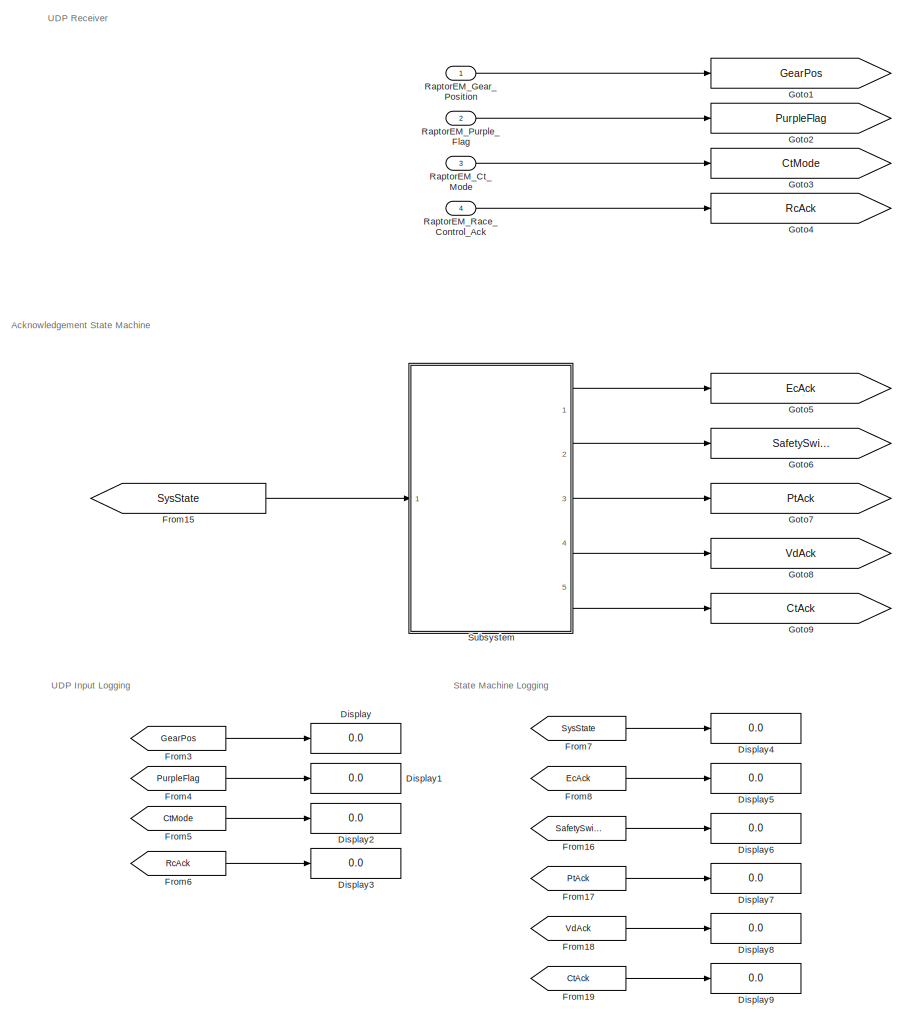
[diagram: root canvas - part 1/2, left side, full height]
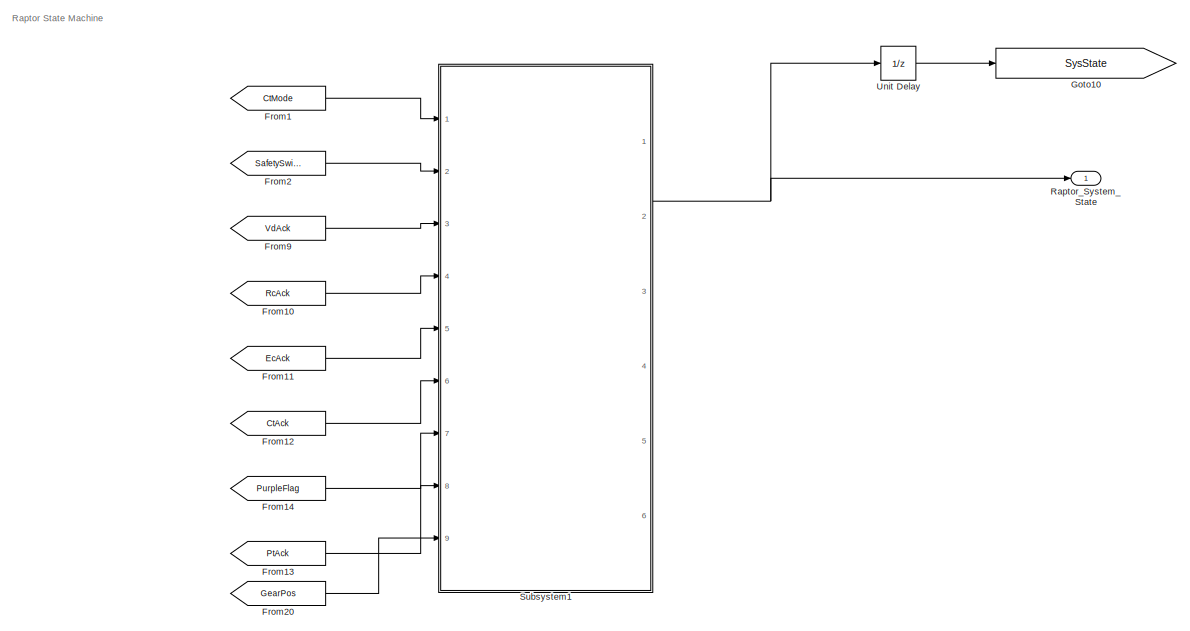
[diagram: root canvas - part 2/2, top right region]
MODEL slx_5da4cb663a10
KIND model
CONFIG AbsTol = auto
CONFIG EnableMultiTasking = on
CONFIG FixedStep = auto
CONFIG MaxStep = auto
CONFIG MinStep = auto
CONFIG RelTol = 1e-3
CONFIG SampleTimeConstraint = Unconstrained
CONFIG Solver = FixedStepAuto
CONFIG SolverName = FixedStepAuto
CONFIG StartTime = 0.0
CONFIG StopTime = Inf
BLOCK [Display] Display
  Decimation = 1
  Ports = [1]
BLOCK [Display] Display1
  Decimation = 1
  Ports = [1]
BLOCK [Display] Display2
  Decimation = 1
  Ports = [1]
BLOCK [Display] Display3
  Decimation = 1
  Ports = [1]
BLOCK [Display] Display4
  Decimation = 1
  Ports = [1]
BLOCK [Display] Display5
  Decimation = 1
  Ports = [1]
BLOCK [Display] Display6
  Decimation = 1
  Ports = [1]
BLOCK [Display] Display7
  Decimation = 1
  Ports = [1]
BLOCK [Display] Display8
  Decimation = 1
  Ports = [1]
BLOCK [Display] Display9
  Decimation = 1
  Ports = [1]
BLOCK [From] From1
  GotoTag = CtMode
BLOCK [From] From10
  GotoTag = RcAck
BLOCK [From] From11
  GotoTag = EcAck
BLOCK [From] From12
  GotoTag = CtAck
BLOCK [From] From13
  GotoTag = PtAck
BLOCK [From] From14
  GotoTag = PurpleFlag
BLOCK [From] From15
  GotoTag = SysState
BLOCK [From] From16
  GotoTag = SafetySwitch
BLOCK [From] From17
  GotoTag = PtAck
BLOCK [From] From18
  GotoTag = VdAck
BLOCK [From] From19
  GotoTag = CtAck
BLOCK [From] From2
  GotoTag = SafetySwitch
BLOCK [From] From20
  GotoTag = GearPos
BLOCK [From] From3
  GotoTag = GearPos
BLOCK [From] From4
  GotoTag = PurpleFlag
BLOCK [From] From5
  GotoTag = CtMode
BLOCK [From] From6
  GotoTag = RcAck
BLOCK [From] From7
  GotoTag = SysState
BLOCK [From] From8
  GotoTag = EcAck
BLOCK [From] From9
  GotoTag = VdAck
BLOCK [Goto] Goto1
  GotoTag = GearPos
BLOCK [Goto] Goto10
  GotoTag = SysState
BLOCK [Goto] Goto2
  GotoTag = PurpleFlag
BLOCK [Goto] Goto3
  GotoTag = CtMode
BLOCK [Goto] Goto4
  GotoTag = RcAck
BLOCK [Goto] Goto5
  GotoTag = EcAck
BLOCK [Goto] Goto6
  GotoTag = SafetySwitch
BLOCK [Goto] Goto7
  GotoTag = PtAck
BLOCK [Goto] Goto8
  GotoTag = VdAck
BLOCK [Goto] Goto9
  GotoTag = CtAck
BLOCK [Inport] RaptorEM_Ct_Mode
  IconDisplay = Port number
  OutDataTypeStr = uint8
  Port = 3
BLOCK [Inport] RaptorEM_Gear_Position
  IconDisplay = Port number
  OutDataTypeStr = uint8
BLOCK [Inport] RaptorEM_Purple_Flag
  IconDisplay = Port number
  OutDataTypeStr = uint8
  Port = 2
BLOCK [Inport] RaptorEM_Race_Control_Ack
  IconDisplay = Port number
  OutDataTypeStr = uint8
  Port = 4
BLOCK [Outport] Raptor_System_State
  IconDisplay = Port number
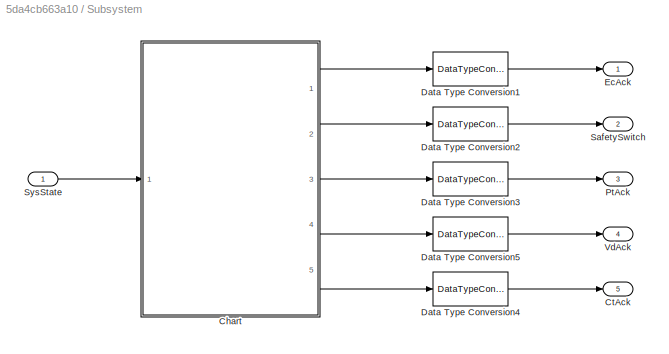
BLOCK [SubSystem] Subsystem
  Ports = [1, 5]
  RequestExecContextInheritance = off
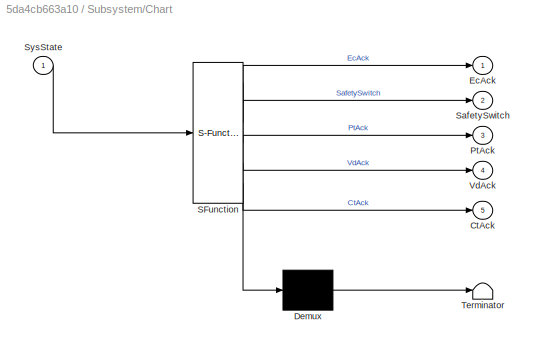
BLOCK [SubSystem] Subsystem/Chart
  ErrorFcn = Stateflow.Translate.translate
  PermitHierarchicalResolution = ExplicitOnly
  Ports = [1, 5]
  RequestExecContextInheritance = off
  SFBlockType = Chart
  TreatAsAtomicUnit = on
BLOCK [Demux] Subsystem/Chart/ Demux 
  Outputs = 1
  Ports = [1, 1]
BLOCK [S-Function] Subsystem/Chart/ SFunction 
  EnableBusSupport = on
  FunctionName = sf_sfun
  PortCounts = [1 6]
  Ports = [1, 6]
  SFcnIsStateOwnerBlock = off
  SFunctionDeploymentMode = off
  Tag = Stateflow S-Function RaptorStateMachine 1
BLOCK [Terminator] Subsystem/Chart/ Terminator 
BLOCK [Outport] Subsystem/Chart/CtAck
  IconDisplay = Port number
  Port = 5
BLOCK [Outport] Subsystem/Chart/EcAck
  IconDisplay = Port number
BLOCK [Outport] Subsystem/Chart/PtAck
  IconDisplay = Port number
  Port = 3
BLOCK [Outport] Subsystem/Chart/SafetySwitch
  IconDisplay = Port number
  Port = 2
BLOCK [Inport] Subsystem/Chart/SysState
  IconDisplay = Port number
BLOCK [Outport] Subsystem/Chart/VdAck
  IconDisplay = Port number
  Port = 4
BLOCK [Outport] Subsystem/CtAck
  IconDisplay = Port number
  Port = 5
BLOCK [DataTypeConversion] Subsystem/Data Type Conversion1
  OutDataTypeStr = uint8
  RndMeth = Floor
  SaturateOnIntegerOverflow = off
BLOCK [DataTypeConversion] Subsystem/Data Type Conversion2
  OutDataTypeStr = uint8
  RndMeth = Floor
  SaturateOnIntegerOverflow = off
BLOCK [DataTypeConversion] Subsystem/Data Type Conversion3
  OutDataTypeStr = uint8
  RndMeth = Floor
  SaturateOnIntegerOverflow = off
BLOCK [DataTypeConversion] Subsystem/Data Type Conversion4
  OutDataTypeStr = uint8
  RndMeth = Floor
  SaturateOnIntegerOverflow = off
BLOCK [DataTypeConversion] Subsystem/Data Type Conversion5
  OutDataTypeStr = uint8
  RndMeth = Floor
  SaturateOnIntegerOverflow = off
BLOCK [Outport] Subsystem/EcAck
  IconDisplay = Port number
BLOCK [Outport] Subsystem/PtAck
  IconDisplay = Port number
  Port = 3
BLOCK [Outport] Subsystem/SafetySwitch
  IconDisplay = Port number
  Port = 2
BLOCK [Inport] Subsystem/SysState
  IconDisplay = Port number
BLOCK [Outport] Subsystem/VdAck
  IconDisplay = Port number
  Port = 4
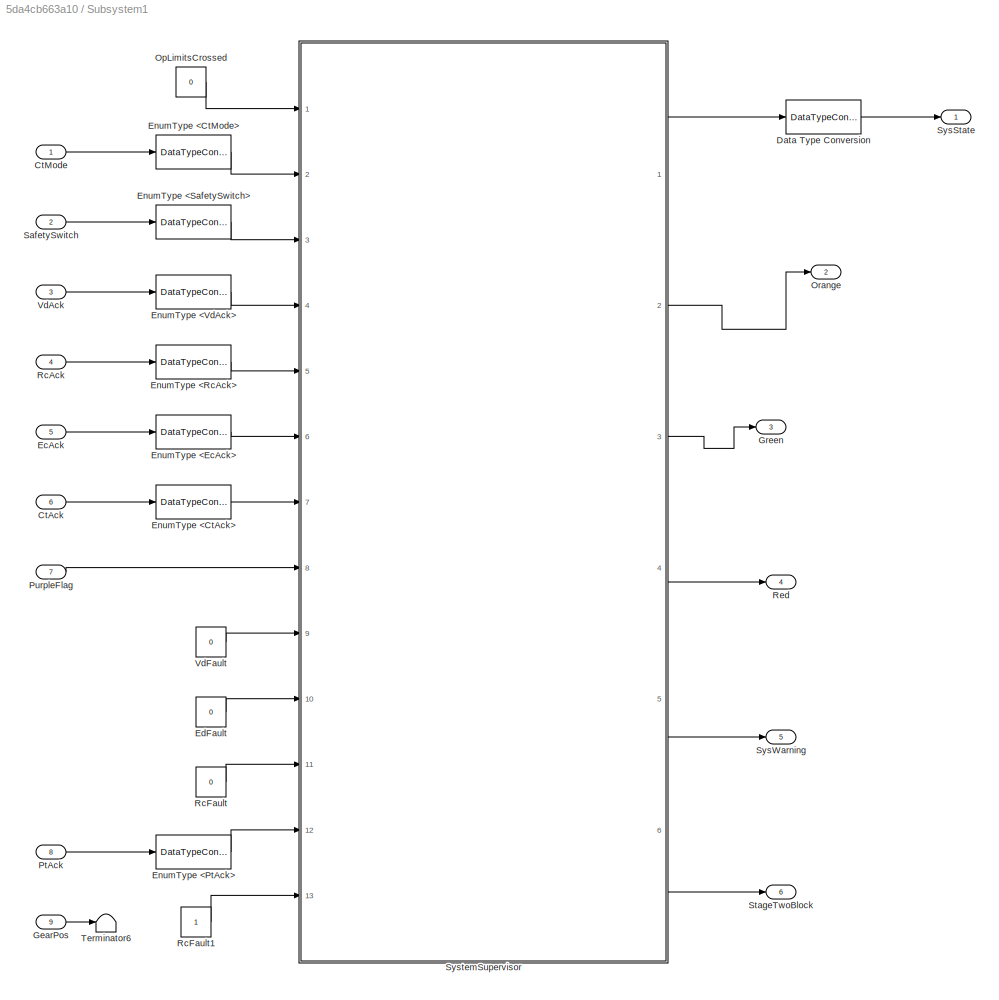
BLOCK [SubSystem] Subsystem1
  Ports = [9, 6]
  RequestExecContextInheritance = off
BLOCK [Inport] Subsystem1/CtAck
  IconDisplay = Port number
  Port = 6
BLOCK [Inport] Subsystem1/CtMode
  IconDisplay = Port number
BLOCK [DataTypeConversion] Subsystem1/Data Type Conversion
  OutDataTypeStr = uint8
  RndMeth = Floor
  SaturateOnIntegerOverflow = off
BLOCK [Inport] Subsystem1/EcAck
  IconDisplay = Port number
  Port = 5
BLOCK [Constant] Subsystem1/EdFault
  Value = 0
BLOCK [DataTypeConversion] Subsystem1/EnumType <CtAck>
  OutDataTypeStr = Enum: CtAck
  RndMeth = Floor
  SaturateOnIntegerOverflow = off
BLOCK [DataTypeConversion] Subsystem1/EnumType <CtMode>
  OutDataTypeStr = Enum: CtMode
  RndMeth = Floor
  SaturateOnIntegerOverflow = off
BLOCK [DataTypeConversion] Subsystem1/EnumType <EcAck>
  OutDataTypeStr = Enum: EcAck
  RndMeth = Floor
  SaturateOnIntegerOverflow = off
BLOCK [DataTypeConversion] Subsystem1/EnumType <PtAck>
  OutDataTypeStr = Enum: PtAck
  RndMeth = Floor
  SaturateOnIntegerOverflow = off
BLOCK [DataTypeConversion] Subsystem1/EnumType <RcAck>
  OutDataTypeStr = Enum: RcAck
  RndMeth = Floor
  SaturateOnIntegerOverflow = off
BLOCK [DataTypeConversion] Subsystem1/EnumType <SafetySwitch>
  OutDataTypeStr = Enum: SafetySwitch
  RndMeth = Floor
  SaturateOnIntegerOverflow = off
BLOCK [DataTypeConversion] Subsystem1/EnumType <VdAck>
  OutDataTypeStr = Enum: VdAck
  RndMeth = Floor
  SaturateOnIntegerOverflow = off
BLOCK [Inport] Subsystem1/GearPos
  IconDisplay = Port number
  Port = 9
BLOCK [Outport] Subsystem1/Green
  IconDisplay = Port number
  Port = 3
BLOCK [Constant] Subsystem1/OpLimitsCrossed
  OutDataTypeStr = boolean
  Value = 0
BLOCK [Outport] Subsystem1/Orange
  IconDisplay = Port number
  Port = 2
BLOCK [Inport] Subsystem1/PtAck
  IconDisplay = Port number
  Port = 8
BLOCK [Inport] Subsystem1/PurpleFlag
  IconDisplay = Port number
  Port = 7
BLOCK [Inport] Subsystem1/RcAck
  IconDisplay = Port number
  Port = 4
BLOCK [Constant] Subsystem1/RcFault
  Value = 0
BLOCK [Constant] Subsystem1/RcFault1
  OutDataTypeStr = uint8
BLOCK [Outport] Subsystem1/Red
  IconDisplay = Port number
  Port = 4
BLOCK [Inport] Subsystem1/SafetySwitch
  IconDisplay = Port number
  Port = 2
BLOCK [Outport] Subsystem1/StageTwoBlock
  IconDisplay = Port number
  Port = 6
BLOCK [Outport] Subsystem1/SysState
  IconDisplay = Port number
BLOCK [Outport] Subsystem1/SysWarning
  IconDisplay = Port number
  Port = 5
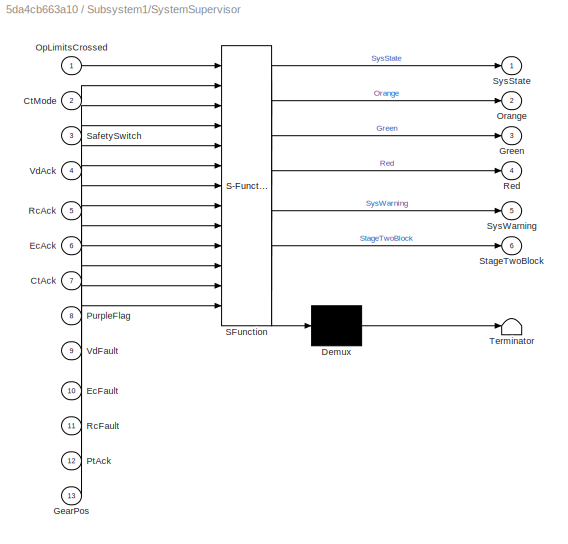
BLOCK [SubSystem] Subsystem1/SystemSupervisor
  ErrorFcn = Stateflow.Translate.translate
  PermitHierarchicalResolution = ExplicitOnly
  Ports = [13, 6]
  RequestExecContextInheritance = off
  SFBlockType = Chart
  TreatAsAtomicUnit = on
BLOCK [Demux] Subsystem1/SystemSupervisor/ Demux 
  DisplayOption = bar
  Outputs = 1
  Ports = [1, 1]
BLOCK [S-Function] Subsystem1/SystemSupervisor/ SFunction 
  EnableBusSupport = on
  FunctionName = sf_sfun
  PortCounts = [13 7]
  Ports = [13, 7]
  SFcnIsStateOwnerBlock = off
  SFunctionDeploymentMode = off
  Tag = Stateflow S-Function RaptorStateMachine 3
BLOCK [Terminator] Subsystem1/SystemSupervisor/ Terminator 
BLOCK [Inport] Subsystem1/SystemSupervisor/CtAck
  IconDisplay = Port number
  Port = 7
BLOCK [Inport] Subsystem1/SystemSupervisor/CtMode
  IconDisplay = Port number
  Port = 2
BLOCK [Inport] Subsystem1/SystemSupervisor/EcAck
  IconDisplay = Port number
  Port = 6
BLOCK [Inport] Subsystem1/SystemSupervisor/EcFault
  IconDisplay = Port number
  Port = 10
BLOCK [Inport] Subsystem1/SystemSupervisor/GearPos
  IconDisplay = Port number
  Port = 13
BLOCK [Outport] Subsystem1/SystemSupervisor/Green
  IconDisplay = Port number
  Port = 3
  VectorParamsAs1DForOutWhenUnconnected = on
BLOCK [Inport] Subsystem1/SystemSupervisor/OpLimitsCrossed
  IconDisplay = Port number
BLOCK [Outport] Subsystem1/SystemSupervisor/Orange
  IconDisplay = Port number
  Port = 2
  VectorParamsAs1DForOutWhenUnconnected = on
BLOCK [Inport] Subsystem1/SystemSupervisor/PtAck
  IconDisplay = Port number
  Port = 12
BLOCK [Inport] Subsystem1/SystemSupervisor/PurpleFlag
  IconDisplay = Port number
  Port = 8
BLOCK [Inport] Subsystem1/SystemSupervisor/RcAck
  IconDisplay = Port number
  Port = 5
BLOCK [Inport] Subsystem1/SystemSupervisor/RcFault
  IconDisplay = Port number
  Port = 11
BLOCK [Outport] Subsystem1/SystemSupervisor/Red
  IconDisplay = Port number
  Port = 4
  VectorParamsAs1DForOutWhenUnconnected = on
BLOCK [Inport] Subsystem1/SystemSupervisor/SafetySwitch
  IconDisplay = Port number
  Port = 3
BLOCK [Outport] Subsystem1/SystemSupervisor/StageTwoBlock
  IconDisplay = Port number
  Port = 6
  VectorParamsAs1DForOutWhenUnconnected = on
BLOCK [Outport] Subsystem1/SystemSupervisor/SysState
  IconDisplay = Port number
  VectorParamsAs1DForOutWhenUnconnected = on
BLOCK [Outport] Subsystem1/SystemSupervisor/SysWarning
  IconDisplay = Port number
  Port = 5
  VectorParamsAs1DForOutWhenUnconnected = on
BLOCK [Inport] Subsystem1/SystemSupervisor/VdAck
  IconDisplay = Port number
  Port = 4
BLOCK [Inport] Subsystem1/SystemSupervisor/VdFault
  IconDisplay = Port number
  Port = 9
BLOCK [Terminator] Subsystem1/Terminator6
BLOCK [Inport] Subsystem1/VdAck
  IconDisplay = Port number
  Port = 3
BLOCK [Constant] Subsystem1/VdFault
  Value = 0
BLOCK [UnitDelay] Unit Delay
  InputProcessing = Elements as channels (sample based)
  SampleTime = -1
ANNOTATION (root): Acknowledgement State Machine
ANNOTATION (root): Raptor State Machine
ANNOTATION (root): State Machine Logging
ANNOTATION (root): UDP Input Logging
ANNOTATION (root): UDP Receiver
LINE From10:1 -> Subsystem1:4
LINE From11:1 -> Subsystem1:5
LINE From12:1 -> Subsystem1:6
LINE From13:1 -> Subsystem1:8
LINE From14:1 -> Subsystem1:7
LINE From15:1 -> Subsystem:1
LINE From16:1 -> Display6:1
LINE From17:1 -> Display7:1
LINE From18:1 -> Display8:1
LINE From19:1 -> Display9:1
LINE From1:1 -> Subsystem1:1
LINE From20:1 -> Subsystem1:9
LINE From2:1 -> Subsystem1:2
LINE From3:1 -> Display:1
LINE From4:1 -> Display1:1
LINE From5:1 -> Display2:1
LINE From6:1 -> Display3:1
LINE From7:1 -> Display4:1
LINE From8:1 -> Display5:1
LINE From9:1 -> Subsystem1:3
LINE RaptorEM_Ct_Mode:1 -> Goto3:1
LINE RaptorEM_Gear_Position:1 -> Goto1:1
LINE RaptorEM_Purple_Flag:1 -> Goto2:1
LINE RaptorEM_Race_Control_Ack:1 -> Goto4:1
LINE Subsystem/Chart:1 -> Subsystem/Data Type Conversion1:1
LINE Subsystem/Chart:2 -> Subsystem/Data Type Conversion2:1
LINE Subsystem/Chart:3 -> Subsystem/Data Type Conversion3:1
LINE Subsystem/Chart:4 -> Subsystem/Data Type Conversion5:1
LINE Subsystem/Chart:5 -> Subsystem/Data Type Conversion4:1
LINE Subsystem/Data Type Conversion1:1 -> Subsystem/EcAck:1
LINE Subsystem/Data Type Conversion2:1 -> Subsystem/SafetySwitch:1
LINE Subsystem/Data Type Conversion3:1 -> Subsystem/PtAck:1
LINE Subsystem/Data Type Conversion4:1 -> Subsystem/CtAck:1
LINE Subsystem/Data Type Conversion5:1 -> Subsystem/VdAck:1
LINE Subsystem/SysState:1 -> Subsystem/Chart:1
LINE Subsystem1/CtAck:1 -> Subsystem1/EnumType <CtAck>:1
LINE Subsystem1/CtMode:1 -> Subsystem1/EnumType <CtMode>:1
LINE Subsystem1/Data Type Conversion:1 -> Subsystem1/SysState:1
LINE Subsystem1/EcAck:1 -> Subsystem1/EnumType <EcAck>:1
LINE Subsystem1/EdFault:1 -> Subsystem1/SystemSupervisor:10
LINE Subsystem1/EnumType <CtAck>:1 -> Subsystem1/SystemSupervisor:7
LINE Subsystem1/EnumType <CtMode>:1 -> Subsystem1/SystemSupervisor:2
LINE Subsystem1/EnumType <EcAck>:1 -> Subsystem1/SystemSupervisor:6
LINE Subsystem1/EnumType <PtAck>:1 -> Subsystem1/SystemSupervisor:12
LINE Subsystem1/EnumType <RcAck>:1 -> Subsystem1/SystemSupervisor:5
LINE Subsystem1/EnumType <SafetySwitch>:1 -> Subsystem1/SystemSupervisor:3
LINE Subsystem1/EnumType <VdAck>:1 -> Subsystem1/SystemSupervisor:4
LINE Subsystem1/GearPos:1 -> Subsystem1/Terminator6:1
LINE Subsystem1/OpLimitsCrossed:1 -> Subsystem1/SystemSupervisor:1
LINE Subsystem1/PtAck:1 -> Subsystem1/EnumType <PtAck>:1
LINE Subsystem1/PurpleFlag:1 -> Subsystem1/SystemSupervisor:8
LINE Subsystem1/RcAck:1 -> Subsystem1/EnumType <RcAck>:1
LINE Subsystem1/RcFault1:1 -> Subsystem1/SystemSupervisor:13
LINE Subsystem1/RcFault:1 -> Subsystem1/SystemSupervisor:11
LINE Subsystem1/SafetySwitch:1 -> Subsystem1/EnumType <SafetySwitch>:1
LINE Subsystem1/SystemSupervisor:1 -> Subsystem1/Data Type Conversion:1
LINE Subsystem1/SystemSupervisor:2 -> Subsystem1/Orange:1
LINE Subsystem1/SystemSupervisor:3 -> Subsystem1/Green:1
LINE Subsystem1/SystemSupervisor:4 -> Subsystem1/Red:1
LINE Subsystem1/SystemSupervisor:5 -> Subsystem1/SysWarning:1
LINE Subsystem1/SystemSupervisor:6 -> Subsystem1/StageTwoBlock:1
LINE Subsystem1/VdAck:1 -> Subsystem1/EnumType <VdAck>:1
LINE Subsystem1/VdFault:1 -> Subsystem1/SystemSupervisor:9
NET Subsystem1:1 -> Raptor_System_State:1, Unit Delay:1
LINE Subsystem:1 -> Goto5:1
LINE Subsystem:2 -> Goto6:1
LINE Subsystem:3 -> Goto7:1
LINE Subsystem:4 -> Goto8:1
LINE Subsystem:5 -> Goto9:1
LINE Unit Delay:1 -> Goto10:1
note: NET lines group one-source signal fan-out (src -> all destinations, sorted); 1:1 wires keep LINE
CHART Subsystem/Chart states=14 transitions=15
  STATE_LABEL 'Default\nEcAck = 2;\nSafetySwitch = 2;'
  STATE_LABEL 'PowerOn\nEcAck = 4;\nSafetySwitch = 3;'
  STATE_LABEL 'EstablishConnections\nCtAck = 2;\nVdAck = 3;\nPtAck = 3;'
  STATE_LABEL 'ActuationTest\nVdAck = 5;'
  STATE_LABEL 'ActuationTestPassed\nSafetySwitch = 4;'
  STATE_LABEL 'WaitingToCrank\n'
  STATE_LABEL 'CrankChecksInit\nPtAck = 5;'
  STATE_LABEL 'CrankChecksPassed\n'
  STATE_LABEL 'EngineStart\nPtAck=7;'
  STATE_LABEL 'EngineIdle'
  STATE_LABEL 'Driving\n'
  STATE_LABEL 'EmergencyShutdown\nVdAck=12;\nPtAck=11;'
  STATE_LABEL 'PowerOff\nVdAck=13;\nEcAck=6;\nSafetySwitch=0;'
  STATE_LABEL 'RaptorOff'
CHART Subsystem1/SystemSupervisor states=31 transitions=35
  STATE_LABEL 'SystemInit'
  STATE_LABEL 'Default\n% Landing state after cartek button is pressed & Safety switch turned to 1\n% IPS, Raptor, MoTeC, SpaceDrive On+Flashing Mode\n% All Ct systems are off\nen: SysWarning = 0; Red=1; Orange = 0; Green =0;\nen,du:\nSysState = SS255_Default;\nif EcFault == 1\n    SysWarning = 1; Red=0; Orange = 0; Green =2;\nelseif GearPos ~= 1\n    SysWarning = 1; Red=2; Orange = 0; Green =0;\nelseif SafetySwitch == Saf...<+127ch>'
  STATE_LABEL 'PowerOn\n% All Ct systems powered on\n% Engine off; Veh stationary\n% Ct has no DBW no throttle\nen: SysWarning = 0; Red=1; Orange = 1; Green =0;\nen,du:\nSysState = SS1_PowerOn;\nif EcFault == 2 || SafetySwitch == SafetySwitchPosFault\n    SysWarning = 2; Red=1; Orange = 2; Green =0;\nelse\n    Red=1; Orange = 1; Green =0;\nend\n'
  STATE_LABEL 'EstablishConnections\n% Verify comms with RC and Ct\n% Check Sd, IPS, MoTeC\n% CT has no DBW no throttle\nen: SysWarning = 0; Red=1; Orange = 1; Green =1;\nen,du:\nSysState = SS2_EstConn;\nif VdFault == 1 || RcFault == 1 %Add PtFault condition\n    SysWarning = 3; Red=1; Orange = 1; Green =2;\nelse\n    Red=1; Orange = 1; Green =1;\nend'
  STATE_LABEL '[EcAck == EcAck2_PowerOnStage1Pass &&...\nSafetySwitch == SafetySwitchPos2 &&...\nGearPos == 1]'
  STATE_LABEL '[CtMode== CtMode2_Initialized && ...\nEcAck == EcAck4_PowerOnStage2Pass &&...\nSafetySwitch == SafetySwitchPos3 ]'
  STATE_LABEL 'Default\n% Landing state after cartek button is pressed & Safety switch turned to 1\n% IPS, Raptor, MoTeC, SpaceDrive On+Flashing Mode\n% All Ct systems are off\nen: SysWarning = 0; Red=1; Orange = 0; Green =0;\nen,du:\nSysState = SS255_Default;\nif EcFault == 1\n    SysWarning = 1; Red=0; Orange = 0; Green =2;\nelseif GearPos ~= 1\n    SysWarning = 1; Red=2; Orange = 0; Green =0;\nelseif SafetySwitch == Saf...<+127ch>'
  STATE_LABEL 'PowerOn\n% All Ct systems powered on\n% Engine off; Veh stationary\n% Ct has no DBW no throttle\nen: SysWarning = 0; Red=1; Orange = 1; Green =0;\nen,du:\nSysState = SS1_PowerOn;\nif EcFault == 2 || SafetySwitch == SafetySwitchPosFault\n    SysWarning = 2; Red=1; Orange = 2; Green =0;\nelse\n    Red=1; Orange = 1; Green =0;\nend\n'
  STATE_LABEL 'EstablishConnections\n% Verify comms with RC and Ct\n% Check Sd, IPS, MoTeC\n% CT has no DBW no throttle\nen: SysWarning = 0; Red=1; Orange = 1; Green =1;\nen,du:\nSysState = SS2_EstConn;\nif VdFault == 1 || RcFault == 1 %Add PtFault condition\n    SysWarning = 3; Red=1; Orange = 1; Green =2;\nelse\n    Red=1; Orange = 1; Green =1;\nend'
  STATE_LABEL '>>To confirm Raptor sends SD wake command and \nIPS power-on was successful via current draw and\nsafety switch gets moved from 0 to 1 to indicate \n"exit low-level controller calibartion mode and power-up \n24V systems + GNSS+Radars" \n>> Don\'t proceed unless the gear is in neutral\n '
  STATE_LABEL '>>CT must check Lidars, cameras, radars & GNSS, and\nCheck current draw confirmation form IPS and \nsafety switch is moved from 1 to 2 to indicate \nhuman go-ahead for actuation tests'
  STATE_LABEL 'added this path to enable switching the car off after actuation test success'
  STATE_LABEL 'ActuationTestPassed\nen: SysWarning = 0;\nen, du:\nSysState = SS4_ActTestPass;\n% V_Batt check ,Gear oil prs & temp checks\n% Engine oil temp check, Gear pos\n%CT has full DBW, no throttle\nRed=1; Orange = 0; Green =0;'
  STATE_LABEL 'ActuationTest\n% Conduct steering, brake test\n% Leak test, actuator limits/response\n% Shift to neutral\n% CT has no DBW no throttle\nen: SysWarning = 0;\nen,du:\nSysState = SS3_ActTest;\nRed=2; Orange = 0; Green =0;\n'
  STATE_LABEL 'CrankChecksInit\nen: SysWarning = 0;\nen,du:\nSysState = SS13_CrankCheckInit;\nRed=1; Orange = 2; Green =0;'
  STATE_LABEL 'WaitingToCrank\nen: SysWarning = 0;\nen, du:\nSysState = SS5_WaitToCrank;\nRed=1; Orange = 2; Green =0;'
  STATE_LABEL 'ActuationTestFailed\n% Conduct steering, brake test\n% Leak test, actuator limits/response\n% Shift to neutral\n% CT has no DBW no throttle\nen,du:\nSysState = SS14_ActTestFail;\nRed=2; Orange = 2; Green =2;\n'
  STATE_LABEL ' None(0)\n    SS255_Default(255)\n    SS1_PowerOn(1)\n    SS2_EstConn(2)\n    SS3_ActTest(3)\n    SS4_ActTestPass(4)\n    SS5_WaitToCrank(5)\n    SS6_CrankChecksPassed(6)\n    SS7_Crank(7)\n    SS8_EngineIdle(8)\n    SS9_Driving(9)\n    SS10_ShutEngine(10)\n    SS11_PowerOff(11)\n    SS12_RaptorOff(12)\n    SS13_CrankCheckInit(13)\n    SS14_ActTestFail(14)\n    SS15_CrankChecksFailed(15)\n    SS16_EmgShutDown(16)\n...<+32ch>'
  STATE_LABEL '>>Enumeration of VdAck\n      VdAck0_None\n      VdAck1_Default\n      VdAck2_VdEstablishConnectionsAttempt\n      VdAck3_VdEstablishConnectionsSuccess\n      VdAck4_ActuationTestAttempt\n      VdAck5_ActuationTestSuccess\n      VdAck6_HoldBrakesForCrankOrShutDown\n      VdAck7_CtSteerBrakeControl\n      VdAck8_BringToStopSuccess\n      VdAck9_VDPowerOff'
  STATE_LABEL '>>Enumeration of RcAck\nRcAck1_RcFound\nRcAck2_RcCheckOrangeFlag\nRcAck3_RcCheckYellowGreenFlag\nRcAck4_RcMovingChecks'
  STATE_LABEL 'NominalOperation '
  STATE_LABEL 'CrankChecksPassed\nen: SysWarning = 0;\n % Engine oil temp check, Gear pos\n % CT has no DBW, no throttle\nen,du:\nSysState = SS6_CrankChecksPassed;\nRed=1; Orange = 1; Green =0;'
  STATE_LABEL 'CrankChecksFailed\nen: SysWarning = 0;\nen,du:\nSysState = SS15_CrankChecksFailed;\nRed=2; Orange = 2; Green =2;\n'
  STATE_LABEL 'EngineOnline'
  STATE_LABEL 'EngineIdle\n% Car may be moving or not\nen,du:\nSysState = SS8_EngineIdle; %6;\n%CT has full DBW no throttle\n%% >> Remove brake & steering control\nRed=1; Orange = 1; Green =2;\n'
  STATE_LABEL 'Driving\nen,du:\nSysState = SS9_Driving;\n%CT has full DBW full throttle\nRed=1; Orange = 1; Green =1;'
  STATE_LABEL '[CtMode == CtMode7_InitDriving &&...\n RcAck == RcAck3_RcCheckYellowGreenFlag] \n% and VdAck?'
  STATE_LABEL '[CtMode == CtMode11_CntrlShudown]'
  STATE_LABEL 'EngineStartFailed\nen,du:\nSysState = SS17_EngineFailedToStart;\nRed=2; Orange = 2; Green =2;'
  STATE_LABEL 'ShutEngine\nen,du:\nSysState = SS10_ShutEngine; %8;\n%CT has no DBW no throttle\n% Raptor holds brakes (speed scaled?)\n% >> Path to redo actuation tests?\nRed=1; Orange = 1; Green =0;'
  STATE_LABEL 'EngineStart\n%Raptor controls crank circ\n%CT has no DBW no throttle\n% Raptor holds brakes (speed scaled?)\nen,du:\nSysState = SS7_Crank;\nRed=1; Orange = 1; Green =2;'
  STATE_LABEL '[CtMode == CtMode11_CntrlShudown ]'
  STATE_LABEL '[CtMode == CtMode5_StartEngineNow &&...\n RcAck == RcAck2_RcCheckOrangeFlag]'
  STATE_LABEL '[PtAck == PtAck13_FireEngineFail]'
  STATE_LABEL '[PtAck == PtAck7_FireEngineSuccess]'
  STATE_LABEL '[CtMode == CtMode11_CntrlShudown]'
  STATE_LABEL 'CrankChecksPassed\nen: SysWarning = 0;\n % Engine oil temp check, Gear pos\n % CT has no DBW, no throttle\nen,du:\nSysState = SS6_CrankChecksPassed;\nRed=1; Orange = 1; Green =0;'
  STATE_LABEL 'CrankChecksFailed\nen: SysWarning = 0;\nen,du:\nSysState = SS15_CrankChecksFailed;\nRed=2; Orange = 2; Green =2;\n'
  STATE_LABEL 'EngineOnline'
  STATE_LABEL 'EngineIdle\n% Car may be moving or not\nen,du:\nSysState = SS8_EngineIdle; %6;\n%CT has full DBW no throttle\n%% >> Remove brake & steering control\nRed=1; Orange = 1; Green =2;\n'
